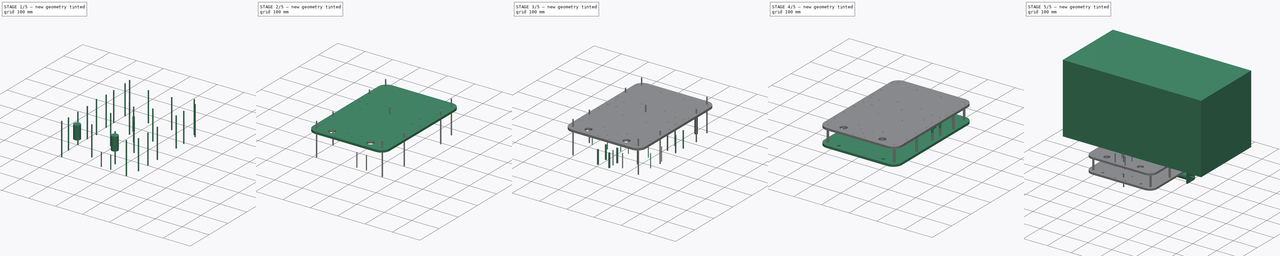
[diagram: build sequence overview — one tinted view per stage of 5, left to right]
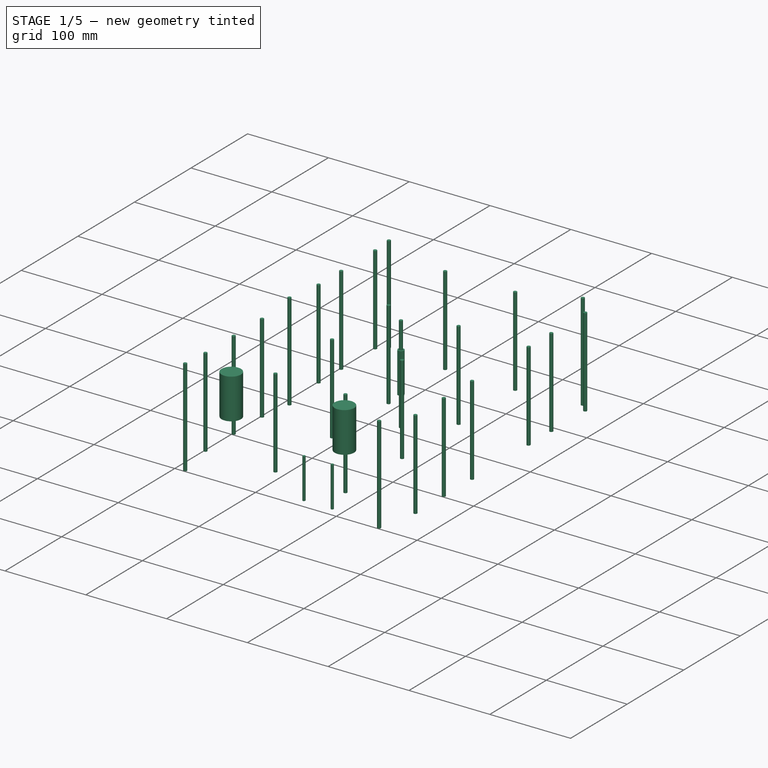
[diagram: stage 1 of 5 — iso view after this stage's code; geometry added in this stage tinted green]
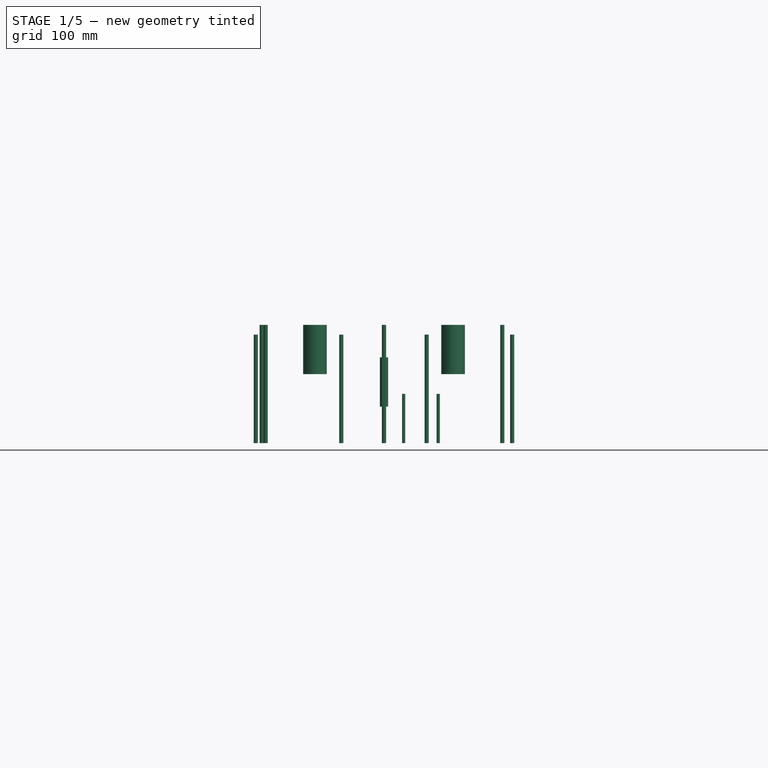
[diagram: stage 1 of 5 — front view after this stage's code; geometry added in this stage tinted green]
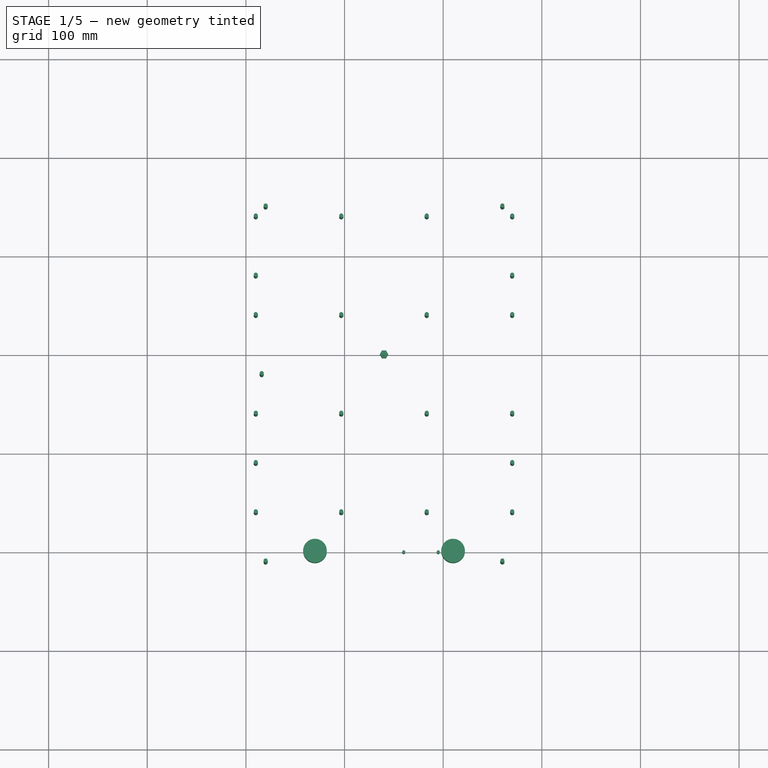
[diagram: stage 1 of 5 — top view after this stage's code; geometry added in this stage tinted green]
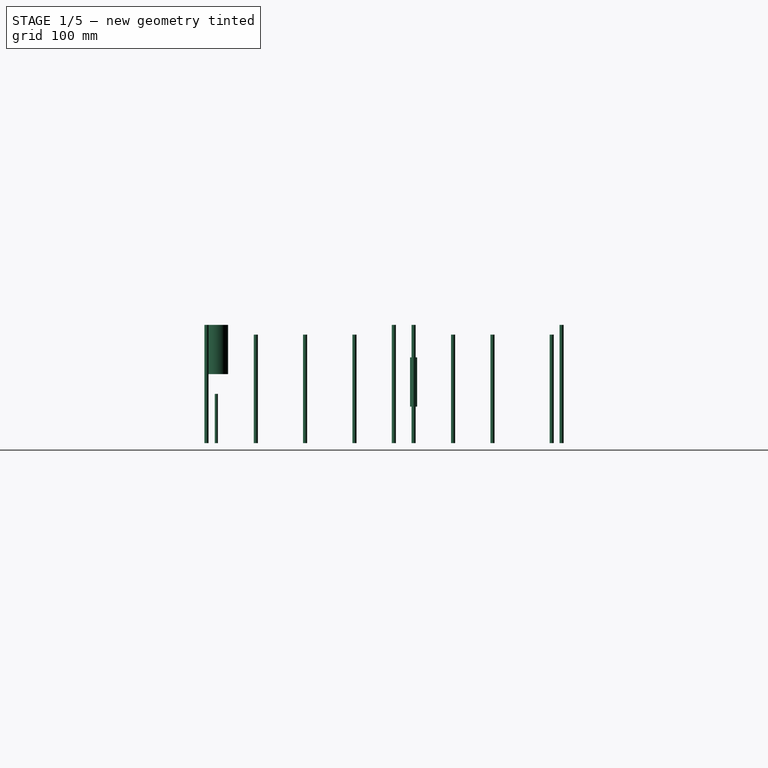
[diagram: stage 1 of 5 — right view after this stage's code; geometry added in this stage tinted green]
FCSTD DOCUMENT  (FreeCAD 0.16R6703 (Git))
Label: mini_robot_v0.2
License: All rights reserved
LicenseURL: http://en.wikipedia.org/wiki/All_rights_reserved
objects: Part::FeaturePython×31, Part::Cylinder×24, Part::Feature×12, Part::Box×10, PartDesign::Pad×7, Sketcher::SketchObject×6, Part::MultiFuse×6, Part::Cut×3, App::FeaturePython×2, Part::Fillet×2, Drawing::FeatureViewPart×2, Drawing::FeaturePage×2, Part::Part2DObjectPython×1
note: 109 computed .brp shape members not serialized (recipe doc carries the construction recipe); baked Part::Feature solids carry a one-line shape summary decoded from their .brp

FEATURE [Part::Part2DObjectPython] Polygon  # Draft 2D object (typed FeaturePython)
  ChamferSize = 0
  DrawMode = 0
  FacesNumber = 6
  FilletRadius = 0
  MakeFace = true
  Placement = pos=(-90,0,0) rot=(0,0,1;0rad)
  Radius = 4.15
FEATURE [PartDesign::Pad] Pad  label="entrtoise_25mm_base"
  Length = 25
  Length2 = 100
  Placement = pos=(-90,0,0) rot=(0,0,1;0rad)
  Sketch = -> Polygon
  Type = 0
FEATURE [Part::Cylinder] Cylinder013  label="m4_003"
  Angle = 360
  Height = 50
  Placement = pos=(-90,0,-10) rot=(0,0,1;0rad)
  Radius = 2
FEATURE [Part::Cut] Cut002002  label="entrtoise_25mm_"
  Base = -> Pad
  Tool = -> Cylinder013
FEATURE [Part::Cylinder] Cylinder018  label="m4_005"
  Angle = 360
  Height = 120
  Placement = pos=(16,-20,0) rot=(0,0,1;0rad)
  Radius = 2.1
FEATURE [Part::Cylinder] Cylinder021  label="m4_006"
  Angle = 360
  Height = 120
  Placement = pos=(20,-210,0) rot=(0,0,1;0rad)
  Radius = 2.1
FEATURE [Part::FeaturePython] Array020  # Draft array (typed FeaturePython)
  Angle = 360
  ArrayType = 0
  Axis = (0,0,1)
  Base = -> Cylinder021
  Center = (0,0,0)
  Fuse = false
  IntervalAxis = (0,0,0)
  IntervalX = (240,0,0)
  IntervalY = (0,360,0)
  IntervalZ = (0,0,0)
  NumberPolar = 1
  NumberX = 2
  NumberY = 2
  NumberZ = 1
FEATURE [Part::Cylinder] Cylinder022  label="m4_007"
  Angle = 360
  Height = 110
  Placement = pos=(10,-110,0) rot=(0,0,1;0rad)
  Radius = 2.1
FEATURE [Part::FeaturePython] Array021  # Draft array (typed FeaturePython)
  Angle = 360
  ArrayType = 0
  Axis = (0,0,1)
  Base = -> Cylinder022
  Center = (0,0,0)
  Fuse = false
  IntervalAxis = (0,0,0)
  IntervalX = (260,0,0)
  IntervalY = (0,190,0)
  IntervalZ = (0,0,0)
  NumberPolar = 1
  NumberX = 2
  NumberY = 2
  NumberZ = 1
FEATURE [Part::Cylinder] Cylinder031  label="passe_bouton_stree_figther_"
  Angle = 360
  Height = 50
  Placement = pos=(70,-200,70) rot=(0,0,1;0rad)
  Radius = 12
FEATURE [Part::FeaturePython] Array030  label="trous_stree_fighter_"  # Draft array (typed FeaturePython)
  Angle = 360
  ArrayType = 0
  Axis = (0,0,1)
  Base = -> Cylinder031
  Center = (0,0,0)
  Fuse = false
  IntervalAxis = (0,0,0)
  IntervalX = (140,0,0)
  IntervalY = (0,1,0)
  IntervalZ = (0,0,0)
  NumberPolar = 1
  NumberX = 2
  NumberY = 1
  NumberZ = 1
FEATURE [Part::Cylinder] Cylinder032  label="m4_011"
  Angle = 360
  Height = 110
  Placement = pos=(10,-160,0) rot=(0,0,1;0rad)
  Radius = 2.1
FEATURE [Part::FeaturePython] Array031  label="fix_top_C9_"  # Draft array (typed FeaturePython)
  Angle = 360
  ArrayType = 0
  Axis = (0,0,1)
  Base = -> Cylinder032
  Center = (0,0,0)
  Fuse = false
  IntervalAxis = (0,0,0)
  IntervalX = (86.6667,0,0)
  IntervalY = (0,100,0)
  IntervalZ = (0,0,0)
  NumberPolar = 1
  NumberX = 4
  NumberY = 4
  NumberZ = 1
FEATURE [Part::Cylinder] Cylinder038  label="central_entretoise_m4_001"
  Angle = 360
  Height = 120
  Placement = pos=(140,0,0) rot=(0,0,1;0rad)
  Radius = 2.1
FEATURE [Part::Cylinder] Cylinder039  label="m3_006"
  Angle = 360
  Height = 50
  Placement = pos=(160,-200,0) rot=(0,0,1;0rad)
  Radius = 1.6
FEATURE [Part::FeaturePython] Array038  label="mount_cam_pi_"  # Draft array (typed FeaturePython)
  Angle = 360
  ArrayType = 0
  Axis = (0,0,1)
  Base = -> Cylinder039
  Center = (140,-200,0)
  Fuse = false
  IntervalAxis = (0,0,0)
  IntervalX = (35,0,0)
  IntervalY = (0,1,0)
  IntervalZ = (0,0,0)
  NumberPolar = 4
  NumberX = 2
  NumberY = 1
  NumberZ = 1
FEATURE [Part::Feature] Cut002006002001  label="mini_rbt_top_v0.2_001"
  shape: bbox 280 x 400 x 8 mm, 50 faces (baked)
FEATURE [Part::Feature] Cut002006002002  label="mini_rbt_btm_v0.2_001"
  shape: bbox 280 x 400 x 8 mm, 58 faces (baked)
FEATURE [Part::FeaturePython] Clone005  label="Clone of entrtoise_25mm_003"  # Draft clone (typed FeaturePython)
  Objects = -> [Cut002002]
  Placement = pos=(230,0,37) rot=(0,0,1;0rad)
  Scale = (1,1,1)
FEATURE [Part::FeaturePython] Array039  label="centrale"  # Draft array (typed FeaturePython)
  Angle = 360
  ArrayType = 0
  Axis = (0,0,1)
  Base = -> Clone005
  Center = (0,0,0)
  Fuse = false
  IntervalAxis = (0,0,0)
  IntervalX = (1,0,0)
  IntervalY = (0,1,0)
  IntervalZ = (0,0,25)
  NumberPolar = 1
  NumberX = 1
  NumberY = 1
  NumberZ = 2
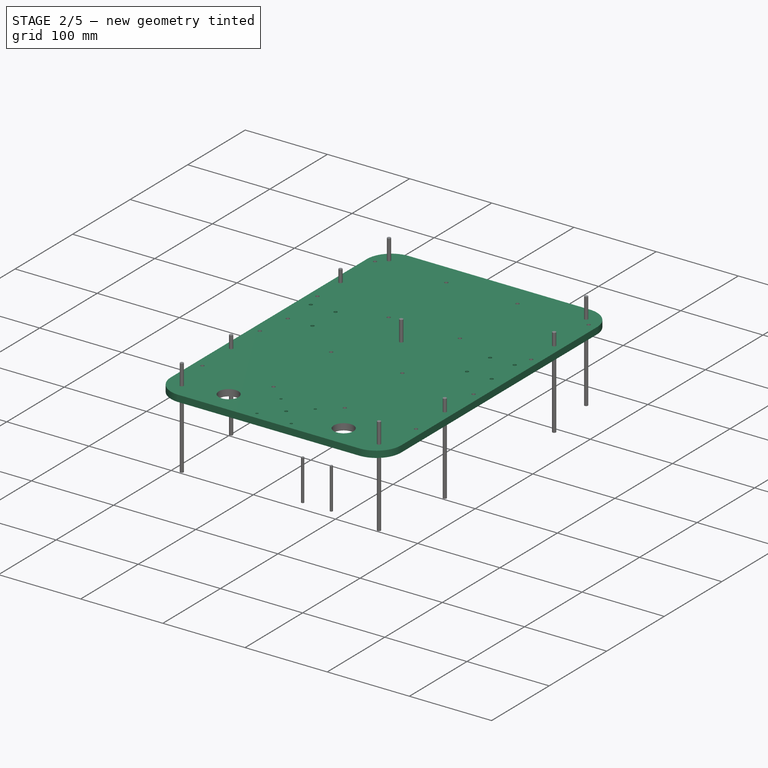
[diagram: stage 2 of 5 — iso view after this stage's code; geometry added in this stage tinted green]
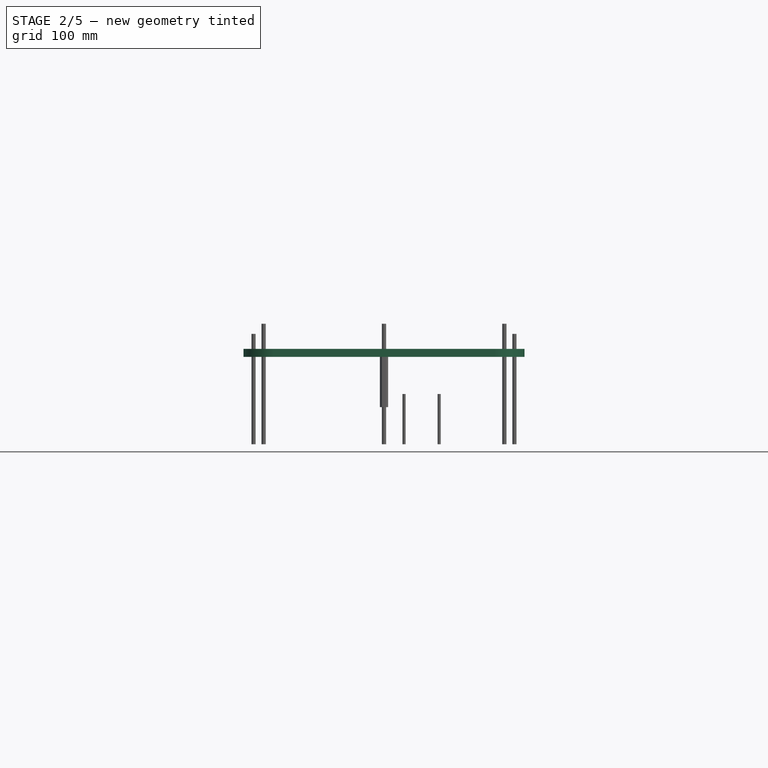
[diagram: stage 2 of 5 — front view after this stage's code; geometry added in this stage tinted green]
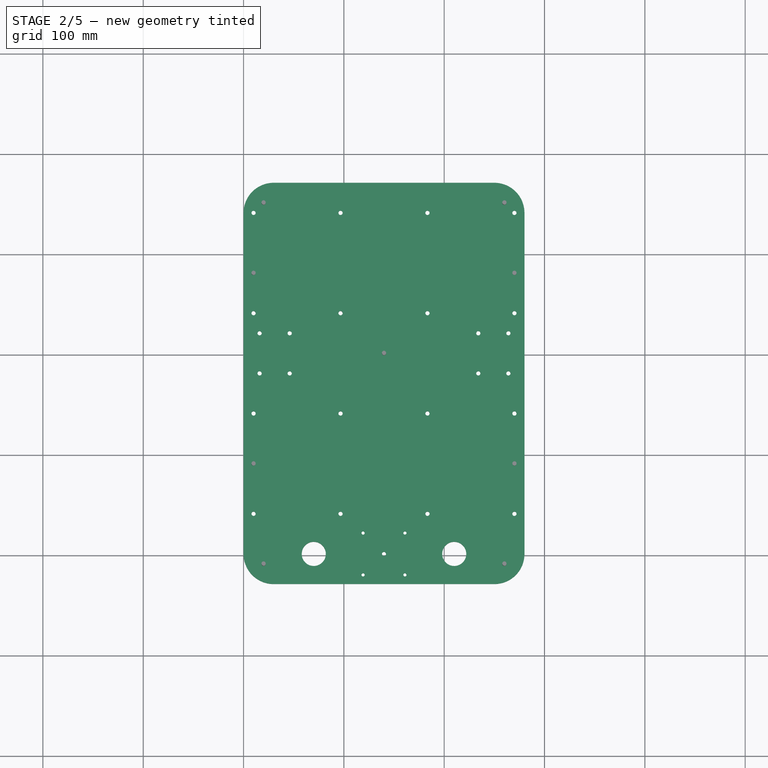
[diagram: stage 2 of 5 — top view after this stage's code; geometry added in this stage tinted green]
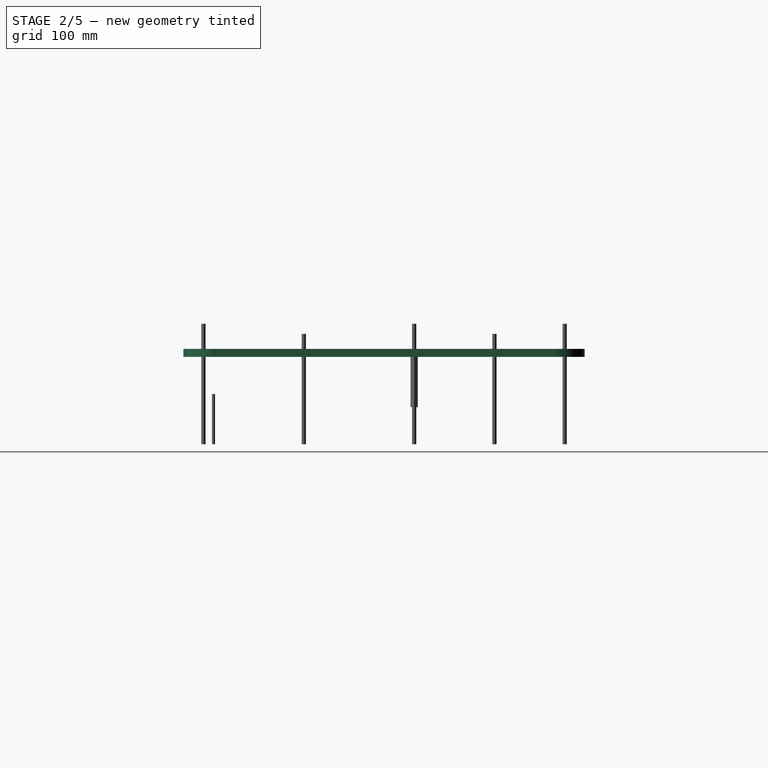
[diagram: stage 2 of 5 — right view after this stage's code; geometry added in this stage tinted green]
FEATURE [Part::Box] Box005  label="base_btm_001"
  Height = 8
  Length = 280
  Placement = pos=(0,-230,87) rot=(0,0,1;0rad)
  Width = 400
FEATURE [Part::Cylinder] Cylinder016  label="m3_003"
  Angle = 360
  Height = 120
  Placement = pos=(140,-200,0) rot=(0,0,1;0rad)
  Radius = 2
FEATURE [Part::Cylinder] Cylinder017  label="m3_005"
  Angle = 360
  Height = 110
  Placement = pos=(160.86,-179.14,0) rot=(0,0,1;0rad)
  Radius = 1.6
  expr: Placement.Base.y = -200 + sin(45) * 29.5
  expr: Placement.Base.x = 140 + cos(45) * 29.5
FEATURE [Part::FeaturePython] Array015  # Draft array (typed FeaturePython)
  Angle = 360
  ArrayType = 1
  Axis = (0,0,1)
  Base = -> Cylinder017
  Center = (140,-200,0)
  Fuse = false
  IntervalAxis = (0,0,0)
  IntervalX = (1,0,0)
  IntervalY = (0,1,0)
  IntervalZ = (0,0,0)
  NumberPolar = 4
  NumberX = 2
  NumberY = 2
  NumberZ = 1
FEATURE [Part::MultiFuse] Fusion003  label="lidar_mount_001"
  Shapes = -> [Array015,Cylinder016]
FEATURE [Part::FeaturePython] Array016  # Draft array (typed FeaturePython)
  Angle = 360
  ArrayType = 0
  Axis = (0,0,1)
  Base = -> Cylinder018
  Center = (0,0,0)
  Fuse = false
  IntervalAxis = (0,0,0)
  IntervalX = (30,0,0)
  IntervalY = (0,40,0)
  IntervalZ = (0,0,0)
  NumberPolar = 1
  NumberX = 2
  NumberY = 2
  NumberZ = 1
FEATURE [Part::FeaturePython] Array017  # Draft array (typed FeaturePython)
  Angle = 360
  ArrayType = 1
  Axis = (0,0,1)
  Base = -> Array016
  Center = (140,0,0)
  Fuse = false
  IntervalAxis = (0,0,0)
  IntervalX = (1,0,0)
  IntervalY = (0,1,0)
  IntervalZ = (0,0,0)
  NumberPolar = 2
  NumberX = 2
  NumberY = 2
  NumberZ = 1
FEATURE [Part::Fillet] Fillet004
  Base = -> Box005
  Edges = 4 edges r=30: [Edge1,Edge3,Edge5,Edge7]
FEATURE [Part::Cylinder] Cylinder035  label="m4_013"
  Angle = 360
  Height = 120
  Placement = pos=(20,-210,0) rot=(0,0,1;0rad)
  Radius = 2.1
FEATURE [Part::FeaturePython] Array036  # Draft array (typed FeaturePython)
  Angle = 360
  ArrayType = 0
  Axis = (0,0,1)
  Base = -> Cylinder035
  Center = (0,0,0)
  Fuse = false
  IntervalAxis = (0,0,0)
  IntervalX = (240,0,0)
  IntervalY = (0,360,0)
  IntervalZ = (0,0,0)
  NumberPolar = 1
  NumberX = 2
  NumberY = 2
  NumberZ = 1
FEATURE [Part::Cylinder] Cylinder036  label="m4_014"
  Angle = 360
  Height = 110
  Placement = pos=(10,-110,0) rot=(0,0,1;0rad)
  Radius = 2.1
FEATURE [Part::FeaturePython] Array037  # Draft array (typed FeaturePython)
  Angle = 360
  ArrayType = 0
  Axis = (0,0,1)
  Base = -> Cylinder036
  Center = (0,0,0)
  Fuse = false
  IntervalAxis = (0,0,0)
  IntervalX = (260,0,0)
  IntervalY = (0,190,0)
  IntervalZ = (0,0,0)
  NumberPolar = 1
  NumberX = 2
  NumberY = 2
  NumberZ = 1
FEATURE [Part::Feature] Cut002006001  label="mini_rbt_top_v0.1_001"
  shape: bbox 280 x 280 x 8 mm, 41 faces (baked)
FEATURE [Part::Cylinder] Cylinder037  label="central_entretoise_m4_"
  Angle = 360
  Height = 120
  Placement = pos=(140,0,0) rot=(0,0,1;0rad)
  Radius = 2.1
FEATURE [Part::MultiFuse] Fusion009  label="trous_entretoises_"
  Shapes = -> [Array017,Array020,Array021,Cylinder038]
FEATURE [Part::MultiFuse] Fusion010
  Shapes = -> [Array030,Fusion009,Fusion003,Array031]
FEATURE [Part::Cut] Cut002006002  label="mini_rbt_top_v0.2_"
  Base = -> Fillet004
  Tool = -> Fusion010
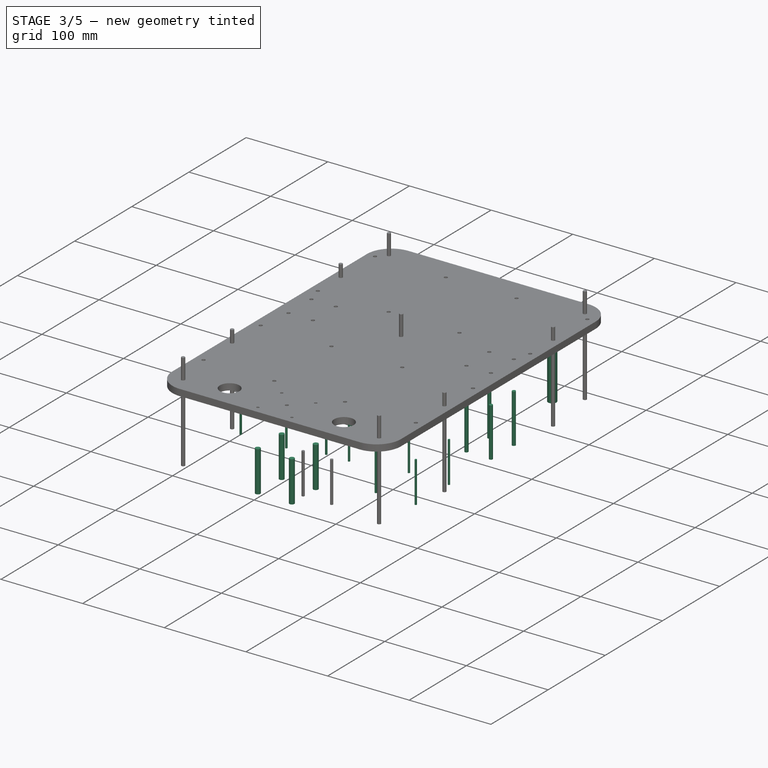
[diagram: stage 3 of 5 — iso view after this stage's code; geometry added in this stage tinted green]
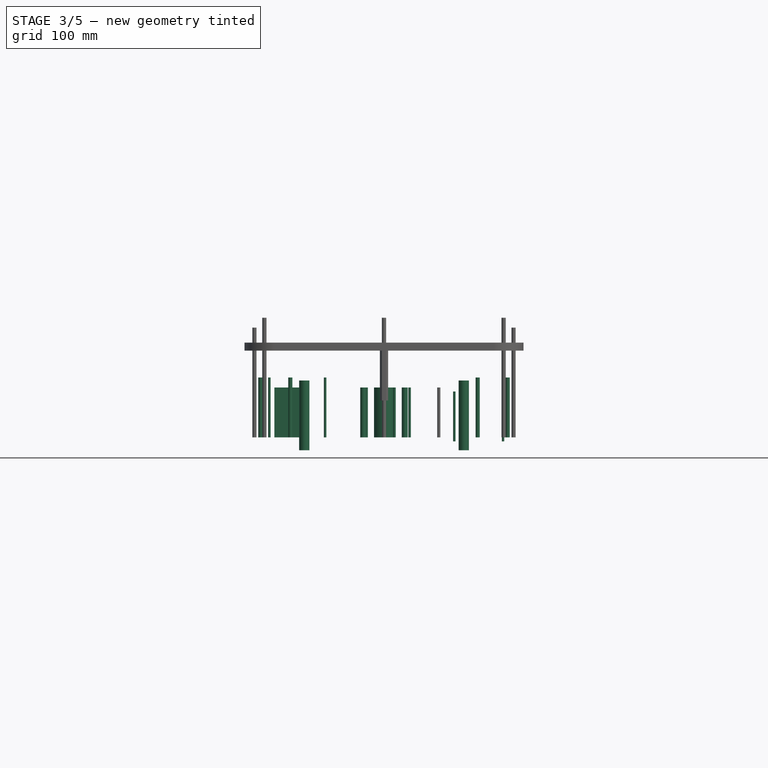
[diagram: stage 3 of 5 — front view after this stage's code; geometry added in this stage tinted green]
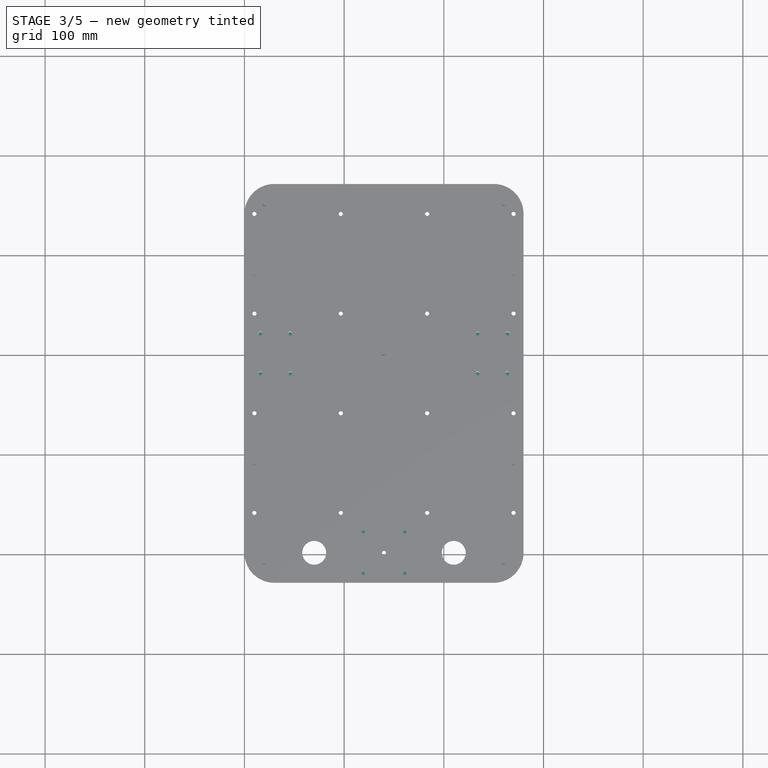
[diagram: stage 3 of 5 — top view after this stage's code; geometry added in this stage tinted green]
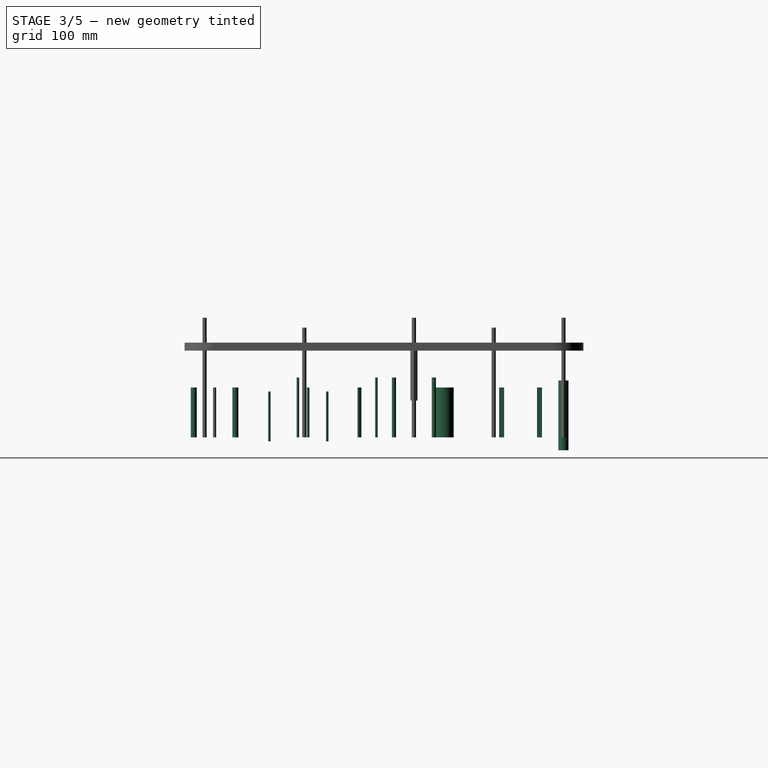
[diagram: stage 3 of 5 — right view after this stage's code; geometry added in this stage tinted green]
FEATURE [Part::Cylinder] Cylinder005  label="passe_tournevis_"
  Angle = 360
  Height = 50
  Placement = pos=(160.86,-179.14,0) rot=(0,0,1;0rad)
  Radius = 3
  expr: Placement.Base.y = -200 + sin(45) * 29.5
  expr: Placement.Base.x = 140 + cos(45) * 29.5
FEATURE [Part::FeaturePython] Array003  label="lidar_mount_002"  # Draft array (typed FeaturePython)
  Angle = 360
  ArrayType = 1
  Axis = (0,0,1)
  Base = -> Cylinder005
  Center = (140,-200,0)
  Fuse = false
  IntervalAxis = (0,0,0)
  IntervalX = (1,0,0)
  IntervalY = (0,1,0)
  IntervalZ = (0,0,0)
  NumberPolar = 4
  NumberX = 2
  NumberY = 2
  NumberZ = 1
FEATURE [Part::Cylinder] Cylinder006  label="m4_"
  Angle = 360
  Height = 60
  Placement = pos=(16,-20,0) rot=(0,0,1;0rad)
  Radius = 2.1
FEATURE [Part::FeaturePython] Array004  # Draft array (typed FeaturePython)
  Angle = 360
  ArrayType = 0
  Axis = (0,0,1)
  Base = -> Cylinder006
  Center = (0,0,0)
  Fuse = false
  IntervalAxis = (0,0,0)
  IntervalX = (30,0,0)
  IntervalY = (0,40,0)
  IntervalZ = (0,0,0)
  NumberPolar = 1
  NumberX = 2
  NumberY = 2
  NumberZ = 1
FEATURE [Part::FeaturePython] Array005  label="roues_mount_"  # Draft array (typed FeaturePython)
  Angle = 360
  ArrayType = 1
  Axis = (0,0,1)
  Base = -> Array004
  Center = (140,0,0)
  Fuse = false
  IntervalAxis = (0,0,0)
  IntervalX = (1,0,0)
  IntervalY = (0,1,0)
  IntervalZ = (0,0,0)
  NumberPolar = 2
  NumberX = 2
  NumberY = 2
  NumberZ = 1
FEATURE [Part::Cylinder] Cylinder007  label="passe_cables"
  Angle = 360
  Height = 50
  Placement = pos=(140,30,0) rot=(0,0,1;0rad)
  Radius = 10
FEATURE [Part::Feature] Fillet002  label="cyton_mdd10a_002"
  Placement = pos=(53,-77,38) rot=(0,0,1;1.5708rad)
  shape: bbox 62 x 84.5 x 1.7 mm, 14 faces (baked)
FEATURE [Part::Cylinder] Cylinder008  label="tarau_m3_  https://docs.google.com/document/d/1ol8nICCTTw5dAHHE_hju08cCVH2GN5_Y3cGC6B4Gbas/edit"
  Angle = 360
  Height = 60
  Placement = pos=(25.06,-37.63,0) rot=(0,0,1;0rad)
  Radius = 1.25
FEATURE [Part::FeaturePython] Array007  # Draft array (typed FeaturePython)
  Angle = 360
  ArrayType = 0
  Axis = (0,0,1)
  Base = -> Cylinder008
  Center = (0,0,0)
  Fuse = false
  IntervalAxis = (0,0,0)
  IntervalX = (55.88,0,0)
  IntervalY = (0,-78.74,0)
  IntervalZ = (0,0,0)
  NumberPolar = 1
  NumberX = 2
  NumberY = 2
  NumberZ = 1
FEATURE [Part::Feature] Fillet003  label="raspberry_pi_001"
  Placement = pos=(235,-126,40) rot=(0,0,-1;1.5708rad)
  shape: bbox 56 x 85 x 1.5 mm, 14 faces (baked)
FEATURE [Part::Feature] Pad002  label="arduino_uno_001"
  Placement = pos=(115,-40,38) rot=(0,0,-1;1.5708rad)
  shape: bbox 53.3 x 68.6 x 1.5 mm, 14 faces (baked)
FEATURE [Part::Feature] rplidar_a2m4_r1
  Placement = pos=(72,-169,87) rot=(0.709306,0.497398,0.499481;1.90672rad)
  shape: bbox 146.5 x 138.6 x 41.71 mm, 980 faces, 25 solids (baked)
FEATURE [Sketcher::SketchObject] Sketch001
  sketch-geometry (4):
    g0: Circle CenterX=14 CenterY=2.5 CenterZ=0 NormalX=0 NormalY=0 NormalZ=1 Radius=1.25
    g1: Circle CenterX=15.3 CenterY=50.7 CenterZ=0 NormalX=0 NormalY=0 NormalZ=1 Radius=1.25
    g2: Circle CenterX=66.1 CenterY=35.5 CenterZ=0 NormalX=0 NormalY=0 NormalZ=1 Radius=1.25
    g3: Circle CenterX=66.1 CenterY=7.6 CenterZ=0 NormalX=0 NormalY=0 NormalZ=1 Radius=1.25
  constraints (12):
    c: DistanceX(g0) = 14
    c: DistanceY(g0) = 2.5
    c: Radius(g0) = 1.25
    c: Equal(g0,g1)
    c: Equal(g1,g2)
    c: Equal(g2,g3)
    c: DistanceX(g0,g1) = 1.3
    c: DistanceX(g1,g2) = 50.8
    c: DistanceX(g2,g3) = 0
    c: DistanceY(g3,g2) = 27.9
    c: DistanceY(g0,g3) = 5.1
    c: DistanceY(g2,g1) = 15.2
FEATURE [PartDesign::Pad] Pad001  label="arduino_uno_holes_"
  Length = 50
  Length2 = 100
  Sketch = -> Sketch001
  Type = 0
FEATURE [Part::FeaturePython] Clone  label="Clone of arduino_uno_holes_"  # Draft clone (typed FeaturePython)
  Objects = -> [Pad001]
  Placement = pos=(115,-40,0) rot=(0,0,-1;1.5708rad)
  Scale = (1,1,1)
FEATURE [Sketcher::SketchObject] Sketch002
  Placement = pos=(0,0,-4) rot=(0,0,1;0rad)
  sketch-geometry (4):
    g0: Circle CenterX=-39 CenterY=24.5 CenterZ=0 NormalX=0 NormalY=0 NormalZ=1 Radius=1.2
    g1: Circle CenterX=19 CenterY=24.5 CenterZ=0 NormalX=0 NormalY=0 NormalZ=1 Radius=1.2
    g2: Circle CenterX=-39 CenterY=-24.5 CenterZ=0 NormalX=0 NormalY=0 NormalZ=1 Radius=1.2
    g3: Circle CenterX=19 CenterY=-24.5 CenterZ=0 NormalX=0 NormalY=0 NormalZ=1 Radius=1.2
  constraints (12):
    c: Radius(g2) = 1.2
    c: DistanceY(g2,g0) = 49
    c: DistanceX(g0,g2) = 0
    c: DistanceX(g0,g1) = 58
    c: DistanceY(g1,g0) = 0
    c: Equal(g2,g0)
    c: Equal(g0,g1)
    c: Equal(g1,g3)
    c: DistanceX(g1,g3) = 0
    c: DistanceY(g2,g3) = 0
    c: DistanceX(g2) = -39
    c: DistanceY(g2) = -24.5
FEATURE [PartDesign::Pad] Pad003  label="raspberry_pi_holes_"
  Length = 50
  Length2 = 100
  Placement = pos=(0,0,-4) rot=(0,0,1;0rad)
  Sketch = -> Sketch002
  Type = 0
FEATURE [Part::FeaturePython] Clone001  label="Clone of raspberry_pi_holes_"  # Draft clone (typed FeaturePython)
  Objects = -> [Pad003]
  Placement = pos=(235,-126,-4) rot=(0,0,-1;1.5708rad)
  Scale = (1,1,1)
FEATURE [Part::MultiFuse] Fusion002  label="mount_electronics_"
  Shapes = -> [Clone001,Clone,Array007]
FEATURE [Part::Feature] Cut002007  label="mini_rbt_btm_v0.1_002"
  shape: bbox 280 x 280 x 8 mm, 50 faces (baked)
FEATURE [Part::Cylinder] Cylinder034  label="m10_003"
  Angle = 360
  Height = 70
  Placement = pos=(60,150,-13) rot=(0,0,1;0rad)
  Radius = 5.1
FEATURE [Part::FeaturePython] Array033  label="roue_fole_mount_back"  # Draft array (typed FeaturePython)
  Angle = 360
  ArrayType = 0
  Axis = (0,0,1)
  Base = -> Cylinder034
  Center = (0,0,0)
  Fuse = false
  IntervalAxis = (0,0,0)
  IntervalX = (160,0,0)
  IntervalY = (0,60,0)
  IntervalZ = (0,0,0)
  NumberPolar = 1
  NumberX = 2
  NumberY = 1
  NumberZ = 1
FEATURE [Part::Box] Box013  label="passe_velcro_002"
  Height = 50
  Length = 25
  Placement = pos=(30,123.5,0) rot=(0,0,1;0rad)
  Width = 5
FEATURE [Part::FeaturePython] Array035  label="mount_battery_002"  # Draft array (typed FeaturePython)
  Angle = 360
  ArrayType = 0
  Axis = (0,0,1)
  Base = -> Box013
  Center = (0,0,0)
  Fuse = false
  IntervalAxis = (0,0,0)
  IntervalX = (1,0,0)
  IntervalY = (0,-38,0)
  IntervalZ = (0,0,0)
  NumberPolar = 1
  NumberX = 1
  NumberY = 2
  NumberZ = 1
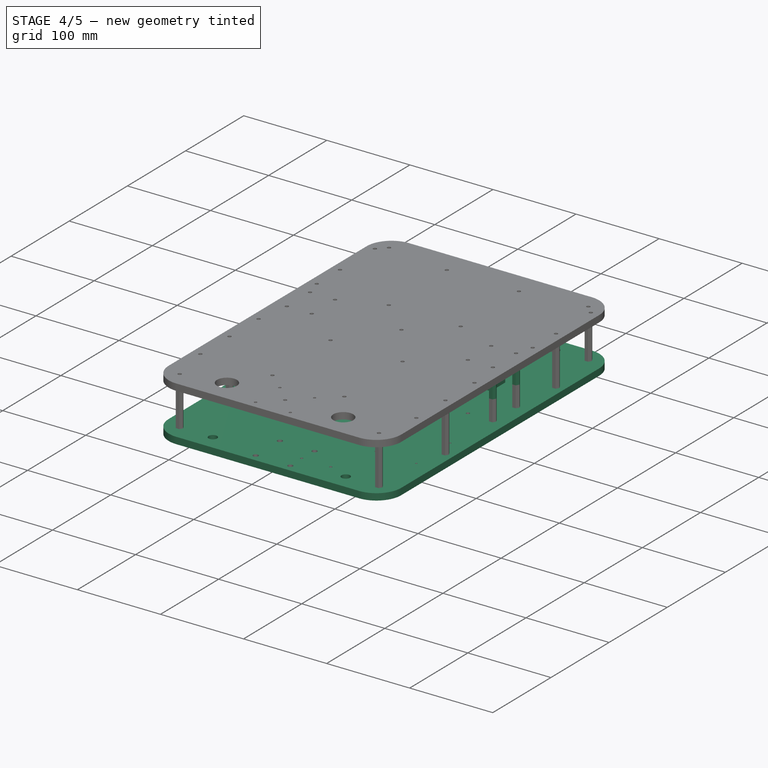
[diagram: stage 4 of 5 — iso view after this stage's code; geometry added in this stage tinted green]
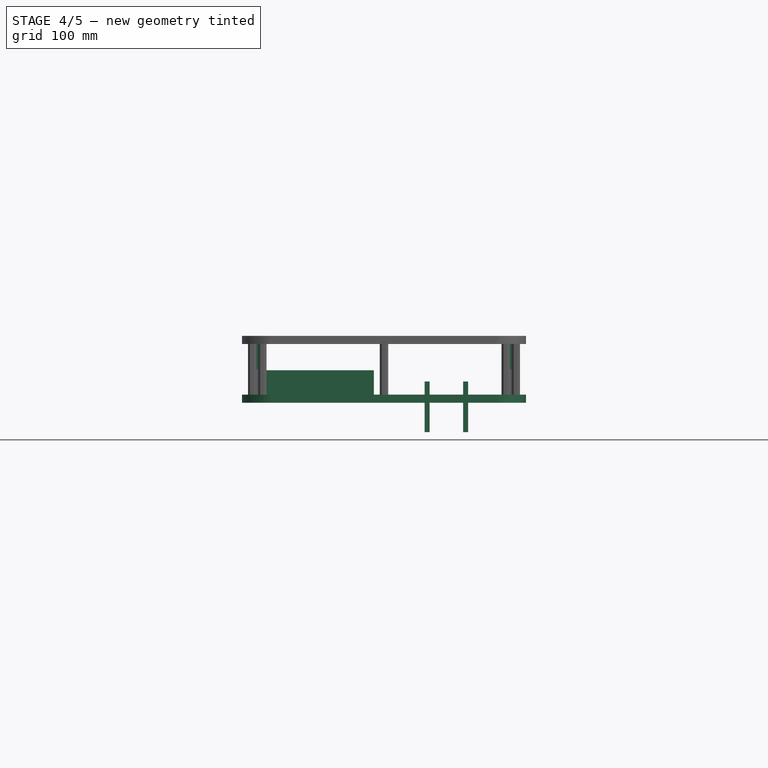
[diagram: stage 4 of 5 — front view after this stage's code; geometry added in this stage tinted green]
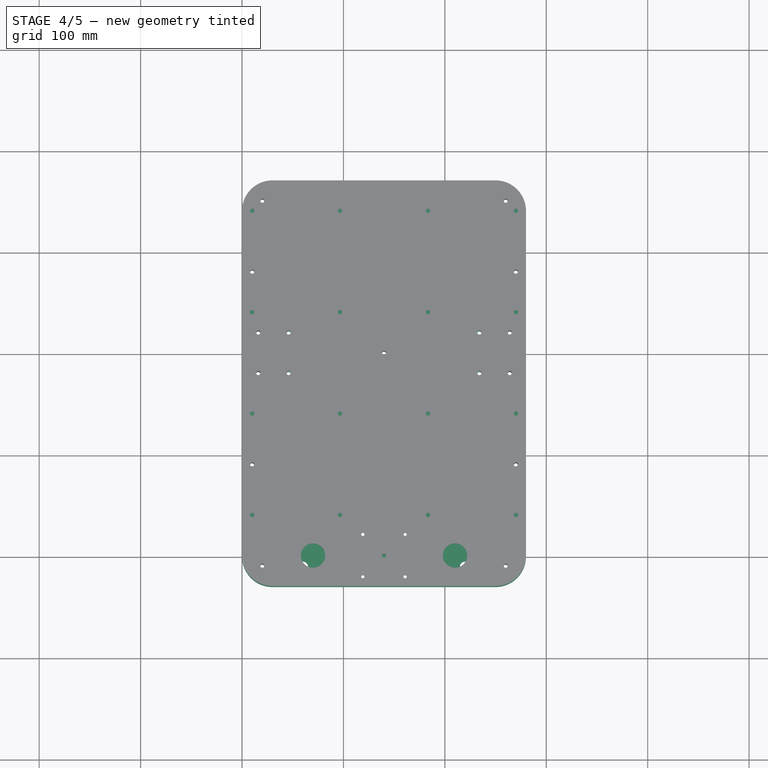
[diagram: stage 4 of 5 — top view after this stage's code; geometry added in this stage tinted green]
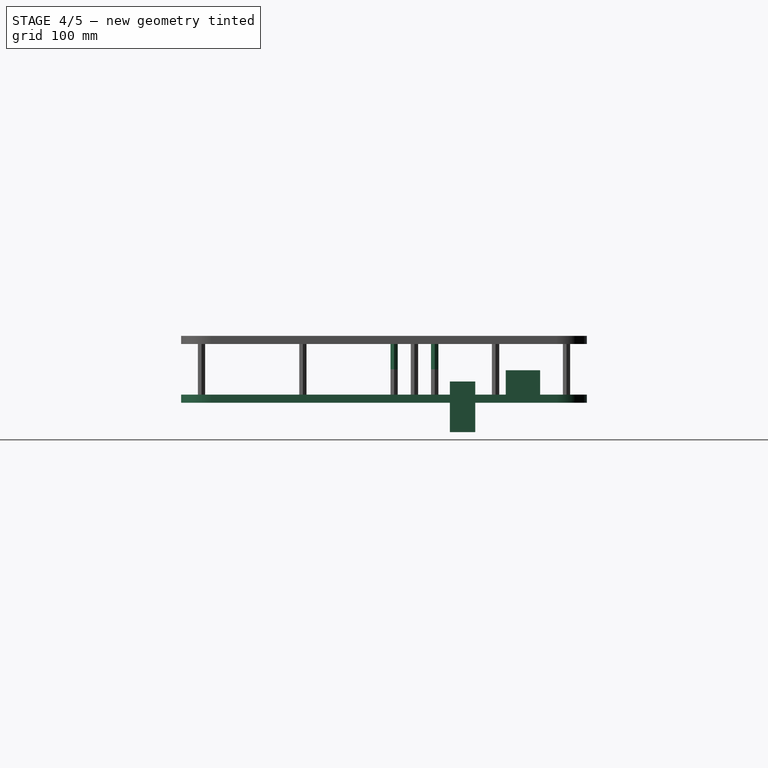
[diagram: stage 4 of 5 — right view after this stage's code; geometry added in this stage tinted green]
FEATURE [Part::Box] Box002  label="base_btm_"
  Height = 8
  Length = 280
  Placement = pos=(0,-230,29) rot=(0,0,1;0rad)
  Width = 400
FEATURE [Part::Cylinder] Cylinder003  label="m10_"
  Angle = 360
  Height = 70
  Placement = pos=(60,-210,-13) rot=(0,0,1;0rad)
  Radius = 5.1
FEATURE [Part::FeaturePython] Array002  label="roue_fole_mount_front_"  # Draft array (typed FeaturePython)
  Angle = 360
  ArrayType = 0
  Axis = (0,0,1)
  Base = -> Cylinder003
  Center = (0,0,0)
  Fuse = false
  IntervalAxis = (0,0,0)
  IntervalX = (160,0,0)
  IntervalY = (0,60,0)
  IntervalZ = (0,0,0)
  NumberPolar = 1
  NumberX = 2
  NumberY = 1
  NumberZ = 1
FEATURE [Part::Fillet] Fillet
  Base = -> Box002
  Edges = 4 edges r=30: [Edge1,Edge3,Edge5,Edge7]
FEATURE [Part::FeaturePython] Clone002  label="Clone of entrtoise_25mm_"  # Draft clone (typed FeaturePython)
  Objects = -> [Cut002002]
  Placement = pos=(106,-20,37) rot=(0,0,1;0rad)
  Scale = (1,1,1)
FEATURE [Part::FeaturePython] Array011  # Draft array (typed FeaturePython)
  Angle = 360
  ArrayType = 0
  Axis = (0,0,1)
  Base = -> Clone002
  Center = (0,0,0)
  Fuse = false
  IntervalAxis = (0,0,0)
  IntervalX = (248,0,0)
  IntervalY = (0,40,0)
  IntervalZ = (0,0,25)
  NumberPolar = 1
  NumberX = 2
  NumberY = 2
  NumberZ = 2
FEATURE [Part::FeaturePython] Clone003  label="Clone of entrtoise_25mm_001"  # Draft clone (typed FeaturePython)
  Objects = -> [Cut002002]
  Placement = pos=(100,-110,37) rot=(0,0,1;0rad)
  Scale = (1,1,1)
FEATURE [Part::FeaturePython] Array012  # Draft array (typed FeaturePython)
  Angle = 360
  ArrayType = 0
  Axis = (0,0,1)
  Base = -> Clone003
  Center = (0,0,0)
  Fuse = false
  IntervalAxis = (0,0,0)
  IntervalX = (260,0,0)
  IntervalY = (0,190,0)
  IntervalZ = (0,0,25)
  NumberPolar = 1
  NumberX = 2
  NumberY = 2
  NumberZ = 2
FEATURE [Part::FeaturePython] Clone004  label="Clone of entrtoise_25mm_002"  # WARN: FeaturePython — macro-defined, semantics opaque (R4)
  Placement = pos=(110,-210,37) rot=(0,0,1;0rad)
  Scale = (1,1,1)
FEATURE [Part::FeaturePython] Array013  # Draft array (typed FeaturePython)
  Angle = 360
  ArrayType = 0
  Axis = (0,0,1)
  Base = -> Clone004
  Center = (0,0,0)
  Fuse = false
  IntervalAxis = (0,0,0)
  IntervalX = (240,0,0)
  IntervalY = (0,360,0)
  IntervalZ = (0,0,25)
  NumberPolar = 1
  NumberX = 2
  NumberY = 2
  NumberZ = 2
FEATURE [Part::Box] Box011  label="passe_velcro_001"
  Height = 50
  Length = 5
  Placement = pos=(180,35,0) rot=(0,0,1;0rad)
  Width = 25
FEATURE [Part::FeaturePython] Array034  label="mount_battery_001"  # Draft array (typed FeaturePython)
  Angle = 360
  ArrayType = 0
  Axis = (0,0,1)
  Base = -> Box011
  Center = (0,0,0)
  Fuse = false
  IntervalAxis = (0,0,0)
  IntervalX = (38,0,0)
  IntervalY = (0,-38,0)
  IntervalZ = (0,0,0)
  NumberPolar = 1
  NumberX = 2
  NumberY = 1
  NumberZ = 1
FEATURE [Part::Box] Box012  label="batterie_tattu_12v_v0.2_001"
  Height = 24
  Length = 110
  Placement = pos=(20,90,37) rot=(0,0,1;0rad)
  Width = 34
FEATURE [Part::MultiFuse] Fusion001
  Shapes = -> [Cylinder007,Array005,Array002,Fusion002,Array035,Array033,Array036,Array037,Cylinder037,Array003,Array038]
FEATURE [Part::Cut] Cut  label="mini_rbt_btm_v0.2_"
  Base = -> Fillet
  Tool = -> Fusion001
FEATURE [Part::MultiFuse] Fusion012  label="entretoises_"
  Shapes = -> [Array012,Array011,Array013,Array039]
FEATURE [Drawing::FeatureViewPart] Ortho  label="Ortho_0_0"
  Direction = (0,0,1)
  HiddenWidth = 0.15
  LineWidth = 0.35
  Rotation = 0
  ShowHiddenLines = false
  ShowSmoothLines = false
  Source = -> Cut
  Tolerance = 0.05
  ViewResult = <blob: 2587 chars omitted>
  Visible = true
  X = 157
  Y = 180
FEATURE [Drawing::FeaturePage] Page  label="Page_mini_rbt_btm_v0.2_"
  Group = -> [Ortho]
FEATURE [Drawing::FeatureViewPart] Ortho001  label="Ortho_0_001"
  Direction = (0,0,1)
  HiddenWidth = 0.15
  LineWidth = 0.35
  Rotation = 0
  ShowHiddenLines = false
  ShowSmoothLines = false
  Source = -> Cut002006002
  Tolerance = 0.05
  ViewResult = <blob: 2207 chars omitted>
  Visible = true
  X = 157
  Y = 180
FEATURE [Drawing::FeaturePage] Page001  label="Page001_mini_rbt_top_v0.2_"
  Group = -> [Ortho001]
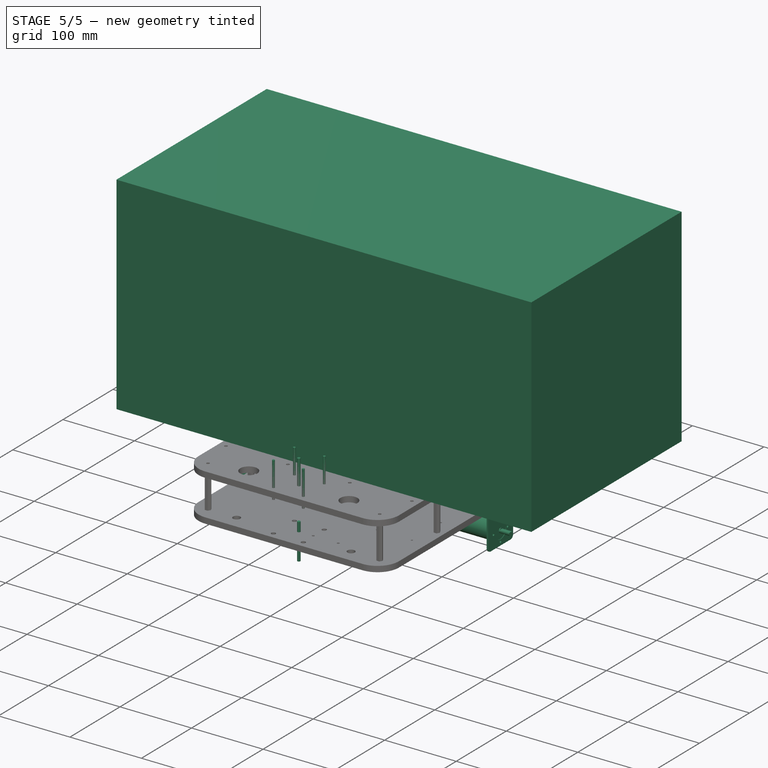
[diagram: stage 5 of 5 — iso view after this stage's code; geometry added in this stage tinted green]
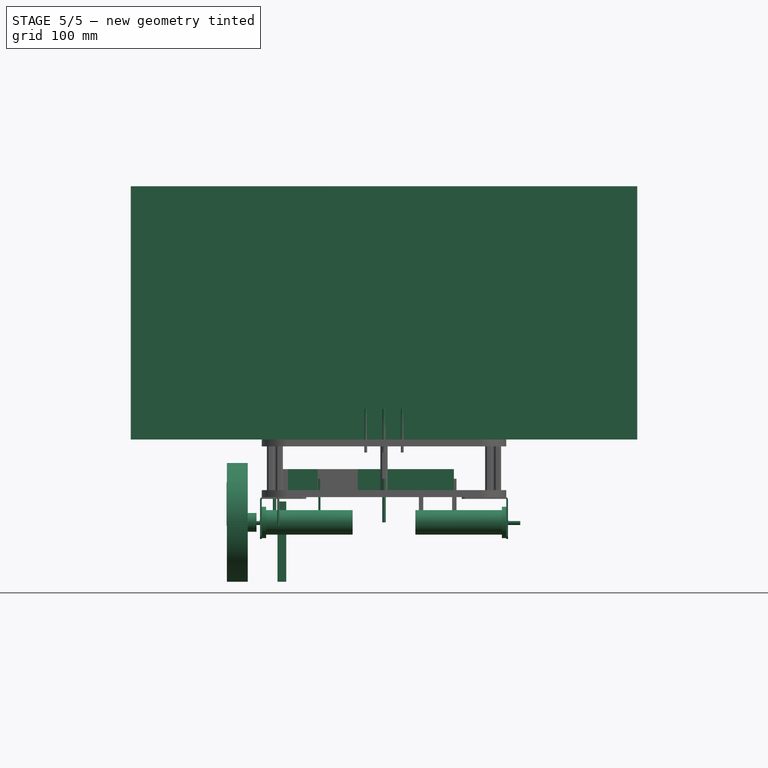
[diagram: stage 5 of 5 — front view after this stage's code; geometry added in this stage tinted green]
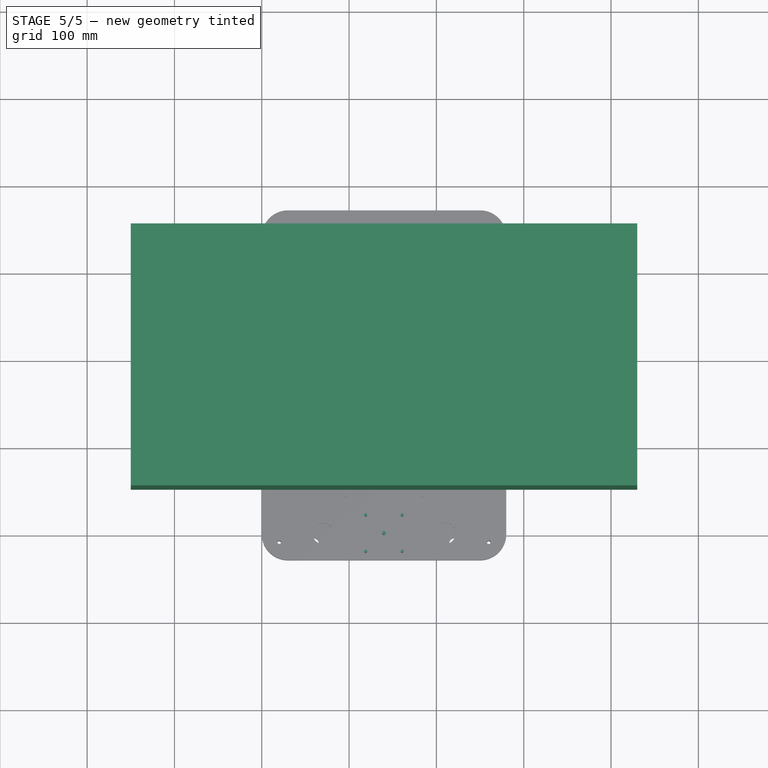
[diagram: stage 5 of 5 — top view after this stage's code; geometry added in this stage tinted green]
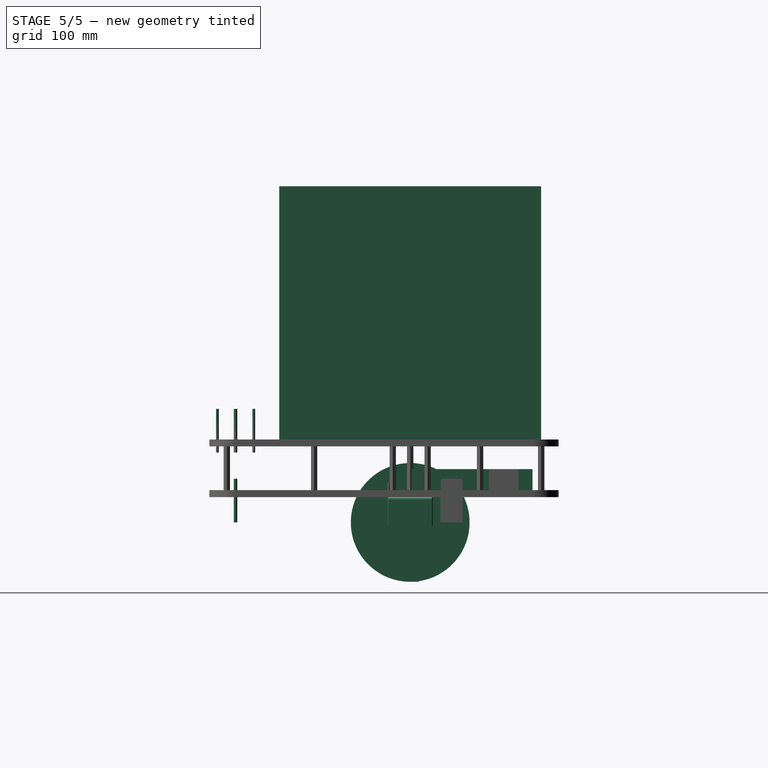
[diagram: stage 5 of 5 — right view after this stage's code; geometry added in this stage tinted green]
FEATURE [Part::Feature] Cut002001  label="equ_mtr_v0.2_001"
  shape: bbox 53 x 50 x 48 mm, 23 faces (baked)
FEATURE [Part::Feature] Cut001  label="FIT0277_12v_motor_dfrobot_001"
  Placement = pos=(0,0,0) rot=(0,0,1;3.14159rad)
  shape: bbox 120 x 36 x 36 mm, 19 faces (baked)
FEATURE [Part::FeaturePython] Array  # Draft array (typed FeaturePython)
  Angle = 360
  ArrayType = 1
  Axis = (0,0,1)
  Base = -> Cut001
  Center = (140,0,0)
  Fuse = false
  IntervalAxis = (0,0,0)
  IntervalX = (1,0,0)
  IntervalY = (0,1,0)
  IntervalZ = (0,0,0)
  NumberPolar = 2
  NumberX = 2
  NumberY = 2
  NumberZ = 1
FEATURE [Part::Cylinder] Cylinder001  label="wheel_136x24_001"
  Angle = 360
  Height = 10
  Placement = pos=(-6,0,0) rot=(0,-1,0;1.5708rad)
  Radius = 10.75
FEATURE [Part::Cylinder] Cylinder  label="wheel_136x24_"
  Angle = 360
  Height = 24
  Placement = pos=(-16,0,0) rot=(0,-1,0;1.5708rad)
  Radius = 68
FEATURE [Part::Box] Box001  label="92mm_de_haut_roue_fole_"
  Height = 92
  Length = 10
  Placement = pos=(18,0,-68) rot=(0,0,1;0rad)
  Width = 10
FEATURE [Part::Box] Box  label="Cube"
  Height = 10
  Length = 10
  Width = 10
FEATURE [Part::FeaturePython] Array001  # Draft array (typed FeaturePython)
  Angle = 360
  ArrayType = 1
  Axis = (0,0,1)
  Base = -> Cut002001
  Center = (140,0,0)
  Fuse = false
  IntervalAxis = (0,0,0)
  IntervalX = (1,0,0)
  IntervalY = (0,1,0)
  IntervalZ = (0,0,0)
  NumberPolar = 2
  NumberX = 2
  NumberY = 2
  NumberZ = 1
FEATURE [App::FeaturePython] Dimension001  # Draft dimension (typed FeaturePython)
  Dimline = (280,-190,0)
  Direction = (0,0,0)
  Distance = 60
  End = (280,-190,0)
  Normal = (0,0,1)
  Start = (220,-190,0)
FEATURE [Part::Cylinder] Cylinder004  label="m3_"
  Angle = 360
  Height = 50
  Placement = pos=(140,-200,0) rot=(0,0,1;0rad)
  Radius = 2
FEATURE [Part::Feature] Fillet001  label="cyton_mdd10a_001"
  Placement = pos=(50,-61,38) rot=(0,0,1;0rad)
  shape: bbox 84.5 x 62 x 1.7 mm, 14 faces (baked)
FEATURE [Part::Box] Box004  label="batterie_tattu_12v_v0.1_"
  Height = 24
  Length = 110
  Placement = pos=(110,1.5,37) rot=(0,0,1;0rad)
  Width = 34
FEATURE [Part::Cylinder] Cylinder011  label="m3_001"
  Angle = 360
  Height = 50
  Placement = pos=(140,-200,80) rot=(0,0,1;0rad)
  Radius = 2
FEATURE [Part::Cylinder] Cylinder012  label="m3_002"
  Angle = 360
  Height = 50
  Placement = pos=(160.86,-179.14,80) rot=(0,0,1;0rad)
  Radius = 1.6
  expr: Placement.Base.y = -200 + sin(45) * 29.5
  expr: Placement.Base.x = 140 + cos(45) * 29.5
FEATURE [Part::FeaturePython] Array010  # Draft array (typed FeaturePython)
  Angle = 360
  ArrayType = 1
  Axis = (0,0,1)
  Base = -> Cylinder012
  Center = (140,-200,0)
  Fuse = false
  IntervalAxis = (0,0,0)
  IntervalX = (1,0,0)
  IntervalY = (0,1,0)
  IntervalZ = (0,0,0)
  NumberPolar = 4
  NumberX = 2
  NumberY = 2
  NumberZ = 1
FEATURE [Sketcher::SketchObject] Sketch003
  sketch-geometry (4):
    g0: Circle CenterX=14 CenterY=2.5 CenterZ=0 NormalX=0 NormalY=0 NormalZ=1 Radius=1.25
    g1: Circle CenterX=15.3 CenterY=50.7 CenterZ=0 NormalX=0 NormalY=0 NormalZ=1 Radius=1.25
    g2: Circle CenterX=66.1 CenterY=35.5 CenterZ=0 NormalX=0 NormalY=0 NormalZ=1 Radius=1.25
    g3: Circle CenterX=66.1 CenterY=7.6 CenterZ=0 NormalX=0 NormalY=0 NormalZ=1 Radius=1.25
  constraints (12):
    c: DistanceX(g0) = 14
    c: DistanceY(g0) = 2.5
    c: Radius(g0) = 1.25
    c: Equal(g0,g1)
    c: Equal(g1,g2)
    c: Equal(g2,g3)
    c: DistanceX(g0,g1) = 1.3
    c: DistanceX(g1,g2) = 50.8
    c: DistanceX(g2,g3) = 0
    c: DistanceY(g3,g2) = 27.9
    c: DistanceY(g0,g3) = 5.1
    c: DistanceY(g2,g1) = 15.2
FEATURE [PartDesign::Pad] Pad005  label="arduino_uno_holes_001"
  Length = 50
  Length2 = 100
  Sketch = -> Sketch003
  Type = 0
FEATURE [Sketcher::SketchObject] Sketch004
  Placement = pos=(0,0,-4) rot=(0,0,1;0rad)
  sketch-geometry (4):
    g0: Circle CenterX=-39 CenterY=24.5 CenterZ=0 NormalX=0 NormalY=0 NormalZ=1 Radius=1.2
    g1: Circle CenterX=19 CenterY=24.5 CenterZ=0 NormalX=0 NormalY=0 NormalZ=1 Radius=1.2
    g2: Circle CenterX=-39 CenterY=-24.5 CenterZ=0 NormalX=0 NormalY=0 NormalZ=1 Radius=1.2
    g3: Circle CenterX=19 CenterY=-24.5 CenterZ=0 NormalX=0 NormalY=0 NormalZ=1 Radius=1.2
  constraints (12):
    c: Radius(g2) = 1.2
    c: DistanceY(g2,g0) = 49
    c: DistanceX(g0,g2) = 0
    c: DistanceX(g0,g1) = 58
    c: DistanceY(g1,g0) = 0
    c: Equal(g2,g0)
    c: Equal(g0,g1)
    c: Equal(g1,g3)
    c: DistanceX(g1,g3) = 0
    c: DistanceY(g2,g3) = 0
    c: DistanceX(g2) = -39
    c: DistanceY(g2) = -24.5
FEATURE [PartDesign::Pad] Pad006  label="raspberry_pi_holes_001"
  Length = 50
  Length2 = 100
  Placement = pos=(0,0,-4) rot=(0,0,1;0rad)
  Sketch = -> Sketch004
  Type = 0
FEATURE [Sketcher::SketchObject] Sketch005
  sketch-geometry (4):
    g0: Circle CenterX=14 CenterY=2.5 CenterZ=0 NormalX=0 NormalY=0 NormalZ=1 Radius=1.25
    g1: Circle CenterX=15.3 CenterY=50.7 CenterZ=0 NormalX=0 NormalY=0 NormalZ=1 Radius=1.25
    g2: Circle CenterX=66.1 CenterY=35.5 CenterZ=0 NormalX=0 NormalY=0 NormalZ=1 Radius=1.25
    g3: Circle CenterX=66.1 CenterY=7.6 CenterZ=0 NormalX=0 NormalY=0 NormalZ=1 Radius=1.25
  constraints (12):
    c: DistanceX(g0) = 14
    c: DistanceY(g0) = 2.5
    c: Radius(g0) = 1.25
    c: Equal(g0,g1)
    c: Equal(g1,g2)
    c: Equal(g2,g3)
    c: DistanceX(g0,g1) = 1.3
    c: DistanceX(g1,g2) = 50.8
    c: DistanceX(g2,g3) = 0
    c: DistanceY(g3,g2) = 27.9
    c: DistanceY(g0,g3) = 5.1
    c: DistanceY(g2,g1) = 15.2
FEATURE [PartDesign::Pad] Pad007  label="arduino_uno_holes_002"
  Length = 50
  Length2 = 100
  Sketch = -> Sketch005
  Type = 0
FEATURE [Sketcher::SketchObject] Sketch006
  Placement = pos=(0,0,-4) rot=(0,0,1;0rad)
  sketch-geometry (4):
    g0: Circle CenterX=-39 CenterY=24.5 CenterZ=0 NormalX=0 NormalY=0 NormalZ=1 Radius=1.2
    g1: Circle CenterX=19 CenterY=24.5 CenterZ=0 NormalX=0 NormalY=0 NormalZ=1 Radius=1.2
    g2: Circle CenterX=-39 CenterY=-24.5 CenterZ=0 NormalX=0 NormalY=0 NormalZ=1 Radius=1.2
    g3: Circle CenterX=19 CenterY=-24.5 CenterZ=0 NormalX=0 NormalY=0 NormalZ=1 Radius=1.2
  constraints (12):
    c: Radius(g2) = 1.2
    c: DistanceY(g2,g0) = 49
    c: DistanceX(g0,g2) = 0
    c: DistanceX(g0,g1) = 58
    c: DistanceY(g1,g0) = 0
    c: Equal(g2,g0)
    c: Equal(g0,g1)
    c: Equal(g1,g3)
    c: DistanceX(g1,g3) = 0
    c: DistanceY(g2,g3) = 0
    c: DistanceX(g2) = -39
    c: DistanceY(g2) = -24.5
FEATURE [PartDesign::Pad] Pad008  label="raspberry_pi_holes_002"
  Length = 50
  Length2 = 100
  Placement = pos=(0,0,-4) rot=(0,0,1;0rad)
  Sketch = -> Sketch006
  Type = 0
FEATURE [Part::Box] Box009  label="C9_ORANGE_SANS_COUVERCLE"
  Height = 290
  Length = 580
  Placement = pos=(-150,-150,95) rot=(0,0,1;0rad)
  Width = 300
FEATURE [App::FeaturePython] Dimension  # Draft dimension (typed FeaturePython)
  Dimline = (220,-230,37)
  Direction = (0,0,0)
  Distance = 20
  End = (220,-230,37)
  Normal = (0,0,1)
  Start = (220,-210,37)
FEATURE [Part::Feature] Cut002005001  label="mini_rbt_btm_v0.1_003"
  shape: bbox 280 x 280 x 8 mm, 50 faces (baked)
FEATURE [Part::Box] Box010  label="batterie_tattu_12v_v0.2_"
  Height = 24
  Length = 34
  Placement = pos=(30,30,37) rot=(0,0,1;0rad)
  Width = 110
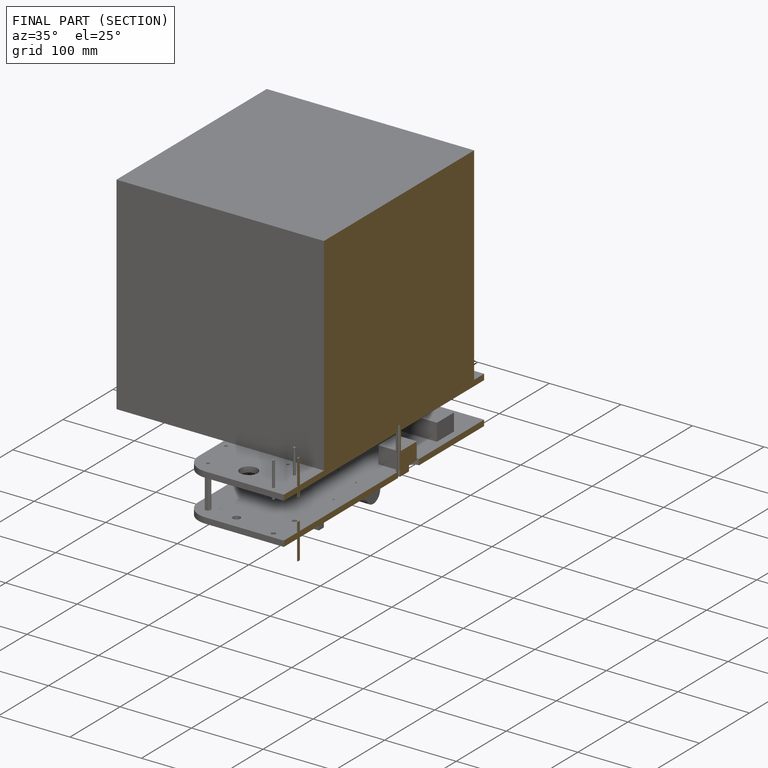
[diagram: finished part — half-section view (interior)]
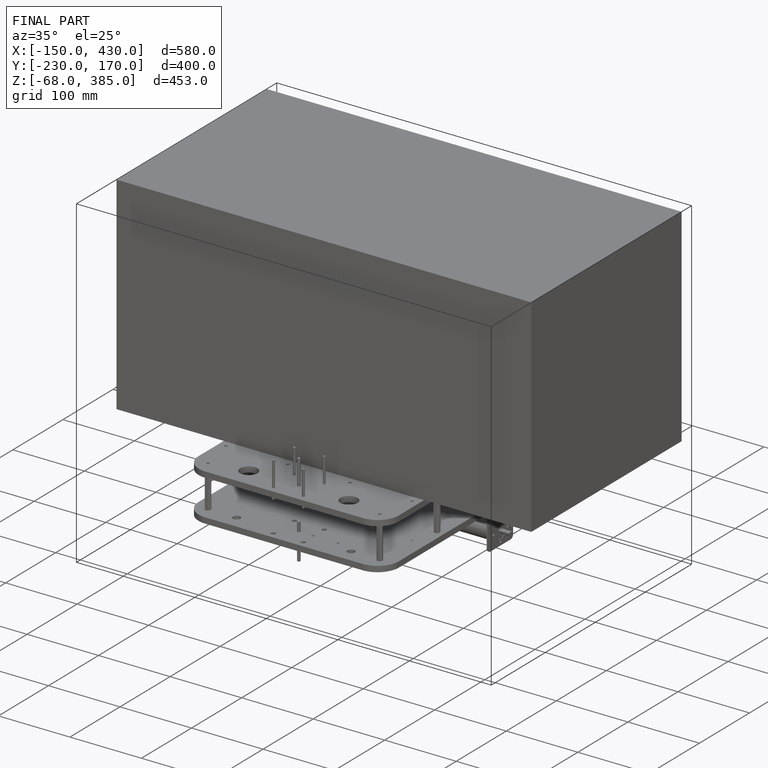
[diagram: finished part — iso view with bounding-box wireframe]
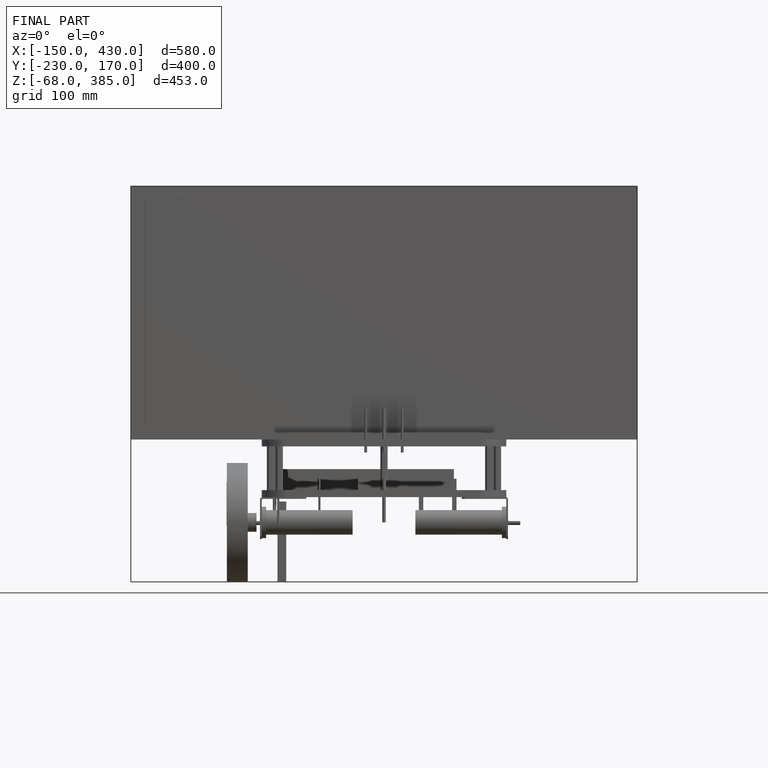
[diagram: finished part — front view with bounding-box wireframe]
